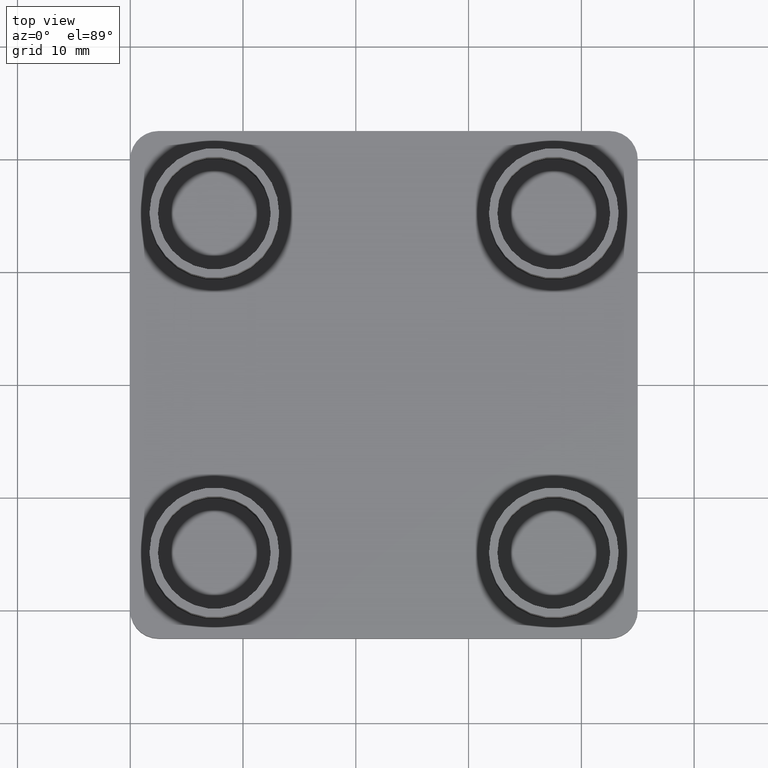
[diagram: clean part render]
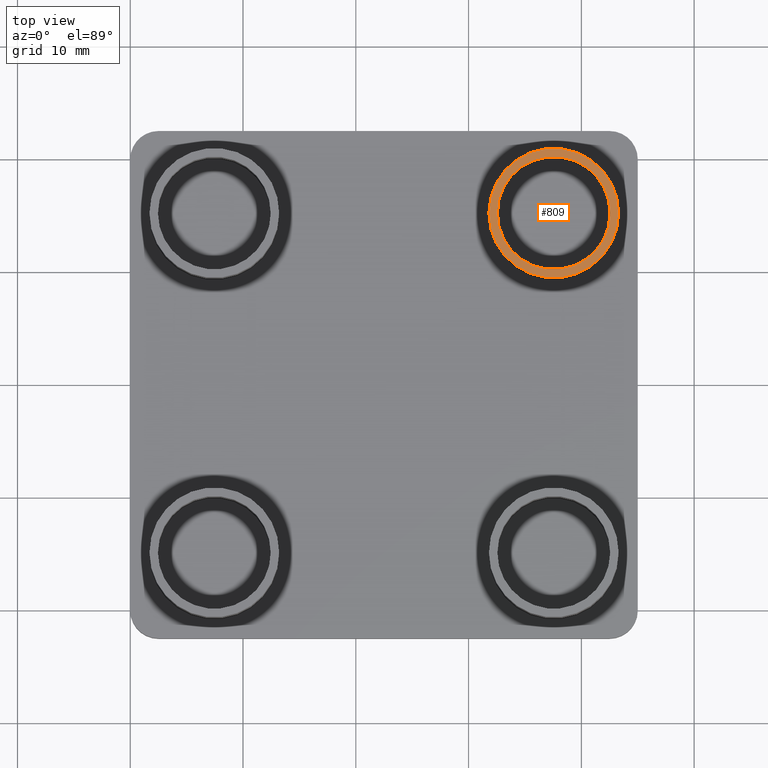
[diagram: same view with one face highlighted and labeled with its STEP entity id]
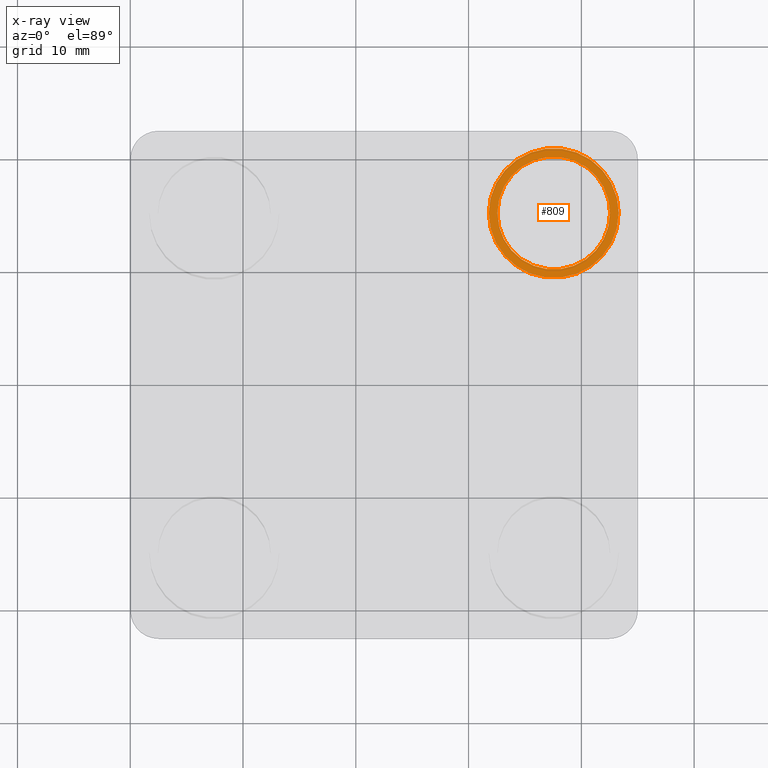
[diagram: x-ray of the same camera — body ghosted, the highlighted face saturated]
A machine part, top view. The second image highlights one B-rep face of the part: STEP entity #809.
The next image is the same camera in x-ray: the body ghosted, the highlighted face saturated — about 0% of this face is hidden behind the body in this view.
In plain terms, the highlighted planar face has unit normal (0, 0, 1).
Its self-contained STEP definition (entity closure, byte-faithful):
#731=CARTESIAN_POINT('',(31.799955499872603,15.049977499939814,10.0));
#732=VERTEX_POINT('',#731);
#733=CARTESIAN_POINT('',(43.299955499826410,15.049977499939814,10.0));
#734=VERTEX_POINT('',#733);
#735=CARTESIAN_POINT('',(37.549955499849602,15.049977499939814,10.0));
#736=DIRECTION('',(0.0,0.0,1.0));
#737=DIRECTION('',(1.0,0.0,0.0));
#738=AXIS2_PLACEMENT_3D('',#735,#736,#737);
#739=CIRCLE('',#738,5.749999999977001);
#740=EDGE_CURVE('',#732,#734,#739,.T.);
#742=CARTESIAN_POINT('',(37.549955499849602,15.049977499939814,10.0));
#743=DIRECTION('',(0.0,0.0,1.0));
#744=DIRECTION('',(1.0,0.0,0.0));
#745=AXIS2_PLACEMENT_3D('',#742,#743,#744);
#746=CIRCLE('',#745,5.749999999977001);
#747=EDGE_CURVE('',#734,#732,#746,.T.);
#766=CARTESIAN_POINT('',(32.549955499869604,15.049977499939814,10.0));
#767=VERTEX_POINT('',#766);
#768=CARTESIAN_POINT('',(42.549955499829593,15.049977499939814,10.0));
#769=VERTEX_POINT('',#768);
#770=CARTESIAN_POINT('',(37.549955499849602,15.049977499939814,10.0));
#771=DIRECTION('',(0.0,0.0,-1.0));
#772=DIRECTION('',(1.0,0.0,0.0));
#773=AXIS2_PLACEMENT_3D('',#770,#771,#772);
#774=CIRCLE('',#773,4.999999999980001);
#775=EDGE_CURVE('',#767,#769,#774,.T.);
#777=CARTESIAN_POINT('',(37.549955499849602,15.049977499939814,10.0));
#778=DIRECTION('',(0.0,0.0,-1.0));
#779=DIRECTION('',(1.0,0.0,0.0));
#780=AXIS2_PLACEMENT_3D('',#777,#778,#779);
#781=CIRCLE('',#780,4.999999999980001);
#782=EDGE_CURVE('',#769,#767,#781,.T.);
#796=CARTESIAN_POINT('',(30.649950765930043,8.149972766048450,10.0));
#797=DIRECTION('',(0.0,0.0,1.0));
#798=DIRECTION('',(1.0,0.0,0.0));
#799=AXIS2_PLACEMENT_3D('',#796,#797,#798);
#800=PLANE('',#799);
#801=ORIENTED_EDGE('',*,*,#747,.T.);
#802=ORIENTED_EDGE('',*,*,#740,.T.);
#803=EDGE_LOOP('',(#801,#802));
#804=FACE_OUTER_BOUND('',#803,.T.);
#805=ORIENTED_EDGE('',*,*,#782,.T.);
#806=ORIENTED_EDGE('',*,*,#775,.T.);
#807=EDGE_LOOP('',(#805,#806));
#808=FACE_BOUND('',#807,.T.);
#809=ADVANCED_FACE('',(#804,#808),#800,.T.);